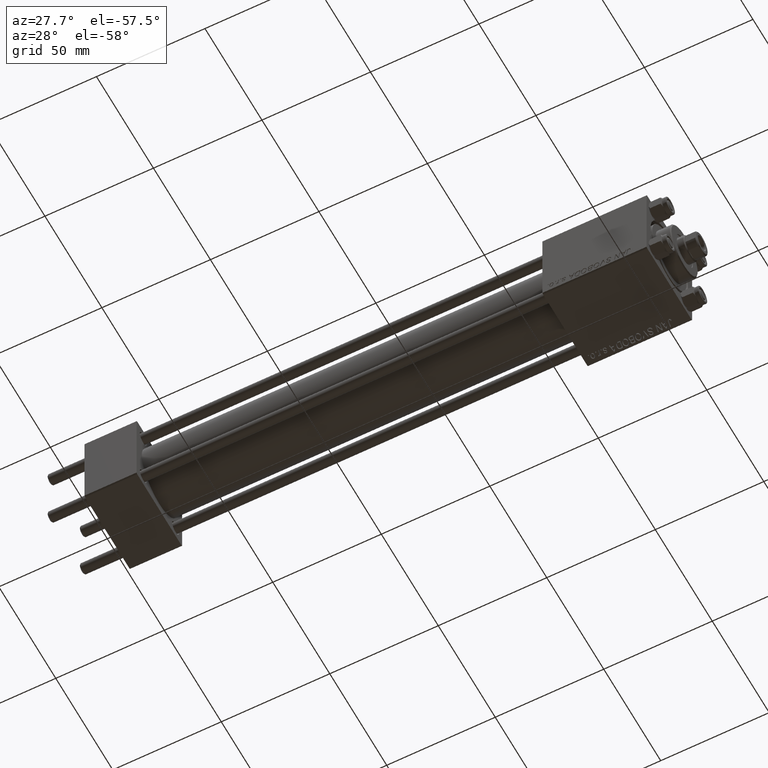
[diagram: clean part render]
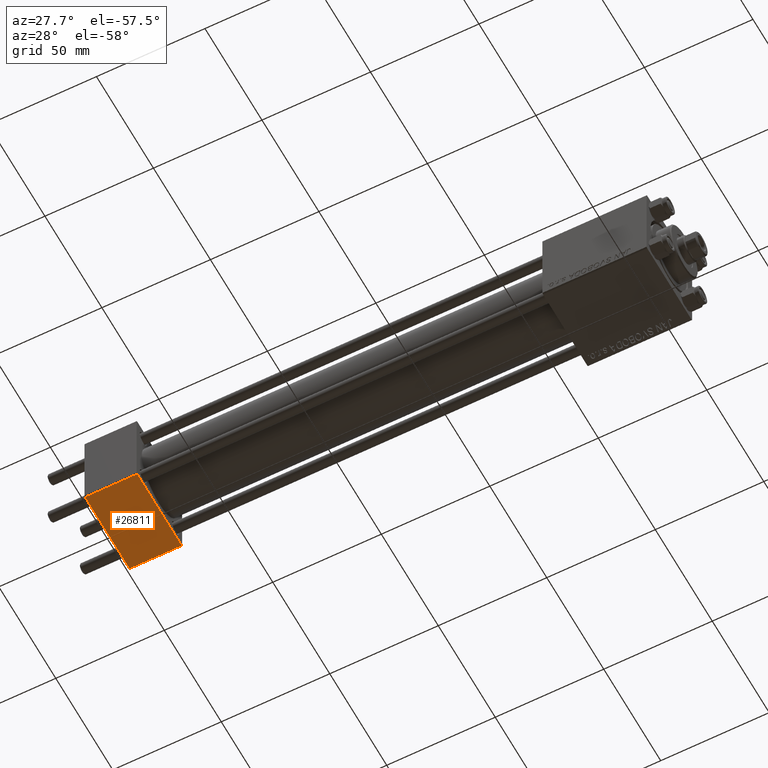
[diagram: same view with one face highlighted and labeled with its STEP entity id]
A machine part, auxiliary view. The second image highlights one B-rep face of the part: STEP entity #26811.
In plain terms, the highlighted planar face has unit normal (0, -0, -1).
Its self-contained STEP definition (entity closure, byte-faithful):
#106 = DIRECTION ( 'NONE',  ( 0.000000000000000000, -1.000000000000000000, 1.734723475976807094E-16 ) ) ;
#3271 = VECTOR ( 'NONE', #106, 1000.000000000000000 ) ;
#5987 = VECTOR ( 'NONE', #9201, 1000.000000000000000 ) ;
#7039 = VECTOR ( 'NONE', #8583, 1000.000000000000000 ) ;
#7673 = EDGE_LOOP ( 'NONE', ( #37638, #11415, #45945, #46810 ) ) ;
#8583 = DIRECTION ( 'NONE',  ( -1.000000000000000000, 0.000000000000000000, 0.000000000000000000 ) ) ;
#8961 = EDGE_CURVE ( 'NONE', #23545, #26298, #43669, .T. ) ;
#9201 = DIRECTION ( 'NONE',  ( 0.000000000000000000, -1.000000000000000000, 1.734723475976807094E-16 ) ) ;
#11415 = ORIENTED_EDGE ( 'NONE', *, *, #38632, .T. ) ;
#15731 = LINE ( 'NONE', #19010, #3271 ) ;
#16406 = EDGE_CURVE ( 'NONE', #18739, #30584, #15731, .T. ) ;
#18739 = VERTEX_POINT ( 'NONE', #35814 ) ;
#19010 = CARTESIAN_POINT ( 'NONE',  ( 24.00000000000000000, 20.00000000000000000, -20.00000000000000711 ) ) ;
#23545 = VERTEX_POINT ( 'NONE', #41100 ) ;
#24807 = CARTESIAN_POINT ( 'NONE',  ( 0.000000000000000000, 20.00000000000000000, -20.00000000000000711 ) ) ;
#26298 = VERTEX_POINT ( 'NONE', #26726 ) ;
#26726 = CARTESIAN_POINT ( 'NONE',  ( 0.000000000000000000, -19.50000000000000711, -20.00000000000000000 ) ) ;
#26811 = ADVANCED_FACE ( 'NONE', ( #48507 ), #40697, .T. ) ;
#27245 = DIRECTION ( 'NONE',  ( 1.000000000000000000, 0.000000000000000000, 0.000000000000000000 ) ) ;
#30584 = VERTEX_POINT ( 'NONE', #31509 ) ;
#31480 = CARTESIAN_POINT ( 'NONE',  ( 0.000000000000000000, -19.50000000000000711, -20.00000000000000000 ) ) ;
#31493 = LINE ( 'NONE', #46377, #31995 ) ;
#31509 = CARTESIAN_POINT ( 'NONE',  ( 24.00000000000000000, -19.50000000000000711, -20.00000000000000000 ) ) ;
#31995 = VECTOR ( 'NONE', #27245, 1000.000000000000000 ) ;
#34533 = LINE ( 'NONE', #31480, #7039 ) ;
#35814 = CARTESIAN_POINT ( 'NONE',  ( 24.00000000000000000, 19.50000000000000711, -20.00000000000000711 ) ) ;
#37638 = ORIENTED_EDGE ( 'NONE', *, *, #8961, .F. ) ;
#38632 = EDGE_CURVE ( 'NONE', #23545, #18739, #31493, .T. ) ;
#40697 = PLANE ( 'NONE',  #48502 ) ;
#40950 = EDGE_CURVE ( 'NONE', #30584, #26298, #34533, .T. ) ;
#41100 = CARTESIAN_POINT ( 'NONE',  ( 0.000000000000000000, 19.50000000000000711, -20.00000000000000711 ) ) ;
#41199 = CARTESIAN_POINT ( 'NONE',  ( 24.00000000000000000, 20.00000000000000000, -20.00000000000000711 ) ) ;
#43669 = LINE ( 'NONE', #24807, #5987 ) ;
#44736 = DIRECTION ( 'NONE',  ( 0.000000000000000000, -1.734723475976806848E-16, -1.000000000000000000 ) ) ;
#45945 = ORIENTED_EDGE ( 'NONE', *, *, #16406, .T. ) ;
#46377 = CARTESIAN_POINT ( 'NONE',  ( 24.00000000000000000, 19.50000000000000711, -20.00000000000000711 ) ) ;
#46810 = ORIENTED_EDGE ( 'NONE', *, *, #40950, .T. ) ;
#48502 = AXIS2_PLACEMENT_3D ( 'NONE', #41199, #44736, #49007 ) ;
#48507 = FACE_OUTER_BOUND ( 'NONE', #7673, .T. ) ;
#49007 = DIRECTION ( 'NONE',  ( 0.000000000000000000, 1.000000000000000000, -1.734723475976806848E-16 ) ) ;